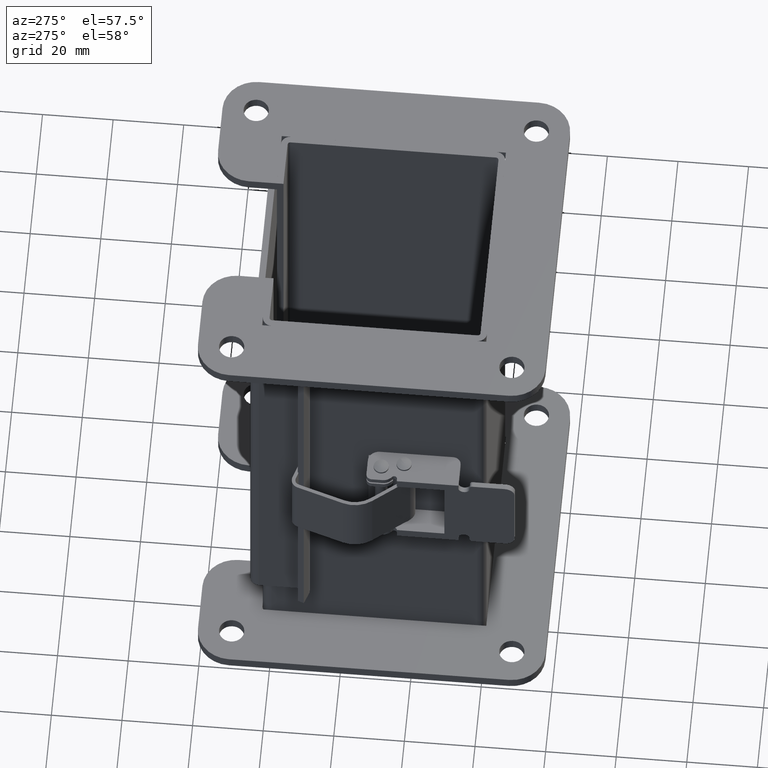
[diagram: clean part render]
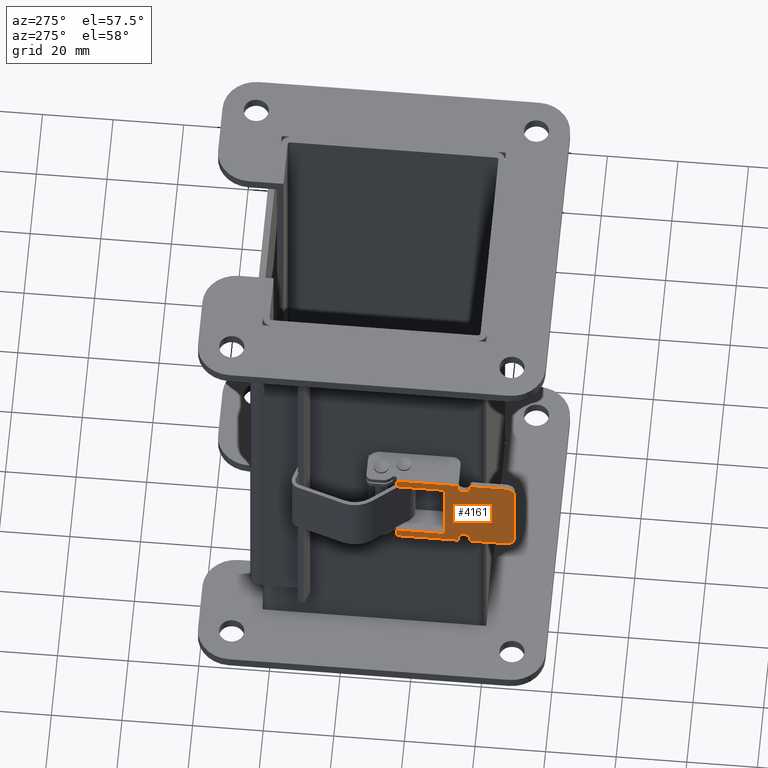
[diagram: same view with one face highlighted and labeled with its STEP entity id]
A machine part, auxiliary view. The second image highlights one B-rep face of the part: STEP entity #4161.
In plain terms, the highlighted planar face has unit normal (1, 0, -0).
Its self-contained STEP definition (entity closure, byte-faithful):
#272=PLANE('',#4516);
#472=FACE_OUTER_BOUND('',#746,.T.);
#746=EDGE_LOOP('',(#3389,#3390,#3391,#3392,#3393,#3394,#3395,#3396,#3397,
#3398,#3399,#3400,#3401,#3402,#3403,#3404,#3405,#3406,#3407,#3408));
#947=CIRCLE('',#4517,0.0625);
#948=CIRCLE('',#4518,0.031250000000001);
#949=CIRCLE('',#4519,0.109375);
#950=CIRCLE('',#4520,0.109375);
#951=CIRCLE('',#4521,0.03125);
#952=CIRCLE('',#4522,0.0625);
#1256=LINE('',#6625,#1646);
#1268=LINE('',#6656,#1658);
#1269=LINE('',#6658,#1659);
#1270=LINE('',#6660,#1660);
#1271=LINE('',#6662,#1661);
#1272=LINE('',#6664,#1662);
#1273=LINE('',#6666,#1663);
#1274=LINE('',#6668,#1664);
#1275=LINE('',#6672,#1665);
#1276=LINE('',#6676,#1666);
#1277=LINE('',#6680,#1667);
#1278=LINE('',#6684,#1668);
#1279=LINE('',#6688,#1669);
#1280=LINE('',#6691,#1670);
#1646=VECTOR('',#5429,0.687499999999998);
#1658=VECTOR('',#5457,0.114750000000001);
#1659=VECTOR('',#5458,0.531249999999998);
#1660=VECTOR('',#5459,0.895500000000013);
#1661=VECTOR('',#5460,0.531249999999998);
#1662=VECTOR('',#5461,0.114750000000004);
#1663=VECTOR('',#5462,0.687499999999998);
#1664=VECTOR('',#5463,0.060000000000002);
#1665=VECTOR('',#5466,0.028750000000002);
#1666=VECTOR('',#5469,0.359375000000002);
#1667=VECTOR('',#5472,0.90625);
#1668=VECTOR('',#5475,0.359375);
#1669=VECTOR('',#5478,0.0287499999999951);
#1670=VECTOR('',#5481,0.0599999999999951);
#2011=VERTEX_POINT('',#6622);
#2012=VERTEX_POINT('',#6624);
#2023=VERTEX_POINT('',#6655);
#2024=VERTEX_POINT('',#6657);
#2025=VERTEX_POINT('',#6659);
#2026=VERTEX_POINT('',#6661);
#2027=VERTEX_POINT('',#6663);
#2028=VERTEX_POINT('',#6665);
#2029=VERTEX_POINT('',#6667);
#2030=VERTEX_POINT('',#6669);
#2031=VERTEX_POINT('',#6671);
#2032=VERTEX_POINT('',#6673);
#2033=VERTEX_POINT('',#6675);
#2034=VERTEX_POINT('',#6677);
#2035=VERTEX_POINT('',#6679);
#2036=VERTEX_POINT('',#6681);
#2037=VERTEX_POINT('',#6683);
#2038=VERTEX_POINT('',#6685);
#2039=VERTEX_POINT('',#6687);
#2040=VERTEX_POINT('',#6689);
#2496=EDGE_CURVE('',#2011,#2012,#1256,.T.);
#2512=EDGE_CURVE('',#2011,#2023,#1268,.T.);
#2513=EDGE_CURVE('',#2024,#2023,#1269,.T.);
#2514=EDGE_CURVE('',#2025,#2024,#1270,.T.);
#2515=EDGE_CURVE('',#2026,#2025,#1271,.T.);
#2516=EDGE_CURVE('',#2027,#2026,#1272,.T.);
#2517=EDGE_CURVE('',#2028,#2027,#1273,.T.);
#2518=EDGE_CURVE('',#2029,#2028,#1274,.T.);
#2519=EDGE_CURVE('',#2030,#2029,#947,.T.);
#2520=EDGE_CURVE('',#2031,#2030,#1275,.T.);
#2521=EDGE_CURVE('',#2032,#2031,#948,.T.);
#2522=EDGE_CURVE('',#2033,#2032,#1276,.T.);
#2523=EDGE_CURVE('',#2034,#2033,#949,.T.);
#2524=EDGE_CURVE('',#2035,#2034,#1277,.T.);
#2525=EDGE_CURVE('',#2036,#2035,#950,.T.);
#2526=EDGE_CURVE('',#2037,#2036,#1278,.T.);
#2527=EDGE_CURVE('',#2038,#2037,#951,.T.);
#2528=EDGE_CURVE('',#2039,#2038,#1279,.T.);
#2529=EDGE_CURVE('',#2040,#2039,#952,.T.);
#2530=EDGE_CURVE('',#2012,#2040,#1280,.T.);
#3389=ORIENTED_EDGE('',*,*,#2512,.T.);
#3390=ORIENTED_EDGE('',*,*,#2513,.F.);
#3391=ORIENTED_EDGE('',*,*,#2514,.F.);
#3392=ORIENTED_EDGE('',*,*,#2515,.F.);
#3393=ORIENTED_EDGE('',*,*,#2516,.F.);
#3394=ORIENTED_EDGE('',*,*,#2517,.F.);
#3395=ORIENTED_EDGE('',*,*,#2518,.F.);
#3396=ORIENTED_EDGE('',*,*,#2519,.F.);
#3397=ORIENTED_EDGE('',*,*,#2520,.F.);
#3398=ORIENTED_EDGE('',*,*,#2521,.F.);
#3399=ORIENTED_EDGE('',*,*,#2522,.F.);
#3400=ORIENTED_EDGE('',*,*,#2523,.F.);
#3401=ORIENTED_EDGE('',*,*,#2524,.F.);
#3402=ORIENTED_EDGE('',*,*,#2525,.F.);
#3403=ORIENTED_EDGE('',*,*,#2526,.F.);
#3404=ORIENTED_EDGE('',*,*,#2527,.F.);
#3405=ORIENTED_EDGE('',*,*,#2528,.F.);
#3406=ORIENTED_EDGE('',*,*,#2529,.F.);
#3407=ORIENTED_EDGE('',*,*,#2530,.F.);
#3408=ORIENTED_EDGE('',*,*,#2496,.F.);
#4161=ADVANCED_FACE('',(#472),#272,.F.);
#4516=AXIS2_PLACEMENT_3D('',#6654,#5455,#5456);
#4517=AXIS2_PLACEMENT_3D('',#6670,#5464,#5465);
#4518=AXIS2_PLACEMENT_3D('',#6674,#5467,#5468);
#4519=AXIS2_PLACEMENT_3D('',#6678,#5470,#5471);
#4520=AXIS2_PLACEMENT_3D('',#6682,#5473,#5474);
#4521=AXIS2_PLACEMENT_3D('',#6686,#5476,#5477);
#4522=AXIS2_PLACEMENT_3D('',#6690,#5479,#5480);
#5429=DIRECTION('',(0.,-1.,0.));
#5455=DIRECTION('center_axis',(0.,0.,-1.));
#5456=DIRECTION('ref_axis',(-1.,0.,0.));
#5457=DIRECTION('',(-1.,0.,0.));
#5458=DIRECTION('',(0.,1.,0.));
#5459=DIRECTION('',(1.,0.,0.));
#5460=DIRECTION('',(0.,-1.,0.));
#5461=DIRECTION('',(1.,0.,0.));
#5462=DIRECTION('',(0.,1.,0.));
#5463=DIRECTION('',(-1.,0.,0.));
#5464=DIRECTION('center_axis',(0.,0.,1.));
#5465=DIRECTION('ref_axis',(1.,0.,0.));
#5466=DIRECTION('',(1.,0.,0.));
#5467=DIRECTION('center_axis',(0.,0.,-1.));
#5468=DIRECTION('ref_axis',(-0.707106781186568,0.707106781186527,0.));
#5469=DIRECTION('',(0.,1.,0.));
#5470=DIRECTION('center_axis',(0.,0.,-1.));
#5471=DIRECTION('ref_axis',(-0.707106781186548,-0.707106781186548,0.));
#5472=DIRECTION('',(-1.,0.,0.));
#5473=DIRECTION('center_axis',(0.,0.,-1.));
#5474=DIRECTION('ref_axis',(0.707106781186545,-0.70710678118655,0.));
#5475=DIRECTION('',(0.,-1.,0.));
#5476=DIRECTION('center_axis',(0.,0.,-1.));
#5477=DIRECTION('ref_axis',(0.707106781186548,0.707106781186548,0.));
#5478=DIRECTION('',(1.,0.,0.));
#5479=DIRECTION('center_axis',(0.,0.,1.));
#5480=DIRECTION('ref_axis',(-1.,0.,0.));
#5481=DIRECTION('',(-1.,0.,0.));
#6622=CARTESIAN_POINT('',(0.562500000000014,0.48437499999998,0.184999999999999));
#6624=CARTESIAN_POINT('',(0.562500000000014,-0.203125000000018,0.185000000000001));
#6625=CARTESIAN_POINT('',(0.562500000000014,0.48437499999998,0.184999999999999));
#6654=CARTESIAN_POINT('Origin',(-0.447749999999992,-0.046875000000018,0.184999999999999));
#6655=CARTESIAN_POINT('',(0.447750000000013,0.48437499999998,0.185000000000001));
#6656=CARTESIAN_POINT('',(0.562500000000014,0.48437499999998,0.184999999999999));
#6657=CARTESIAN_POINT('',(0.447750000000021,-0.046875000000018,0.185000000000001));
#6658=CARTESIAN_POINT('',(0.447750000000021,-0.046875000000018,0.185000000000001));
#6659=CARTESIAN_POINT('',(-0.447749999999992,-0.046875000000018,0.184999999999999));
#6660=CARTESIAN_POINT('',(-0.447749999999992,-0.046875000000018,0.184999999999999));
#6661=CARTESIAN_POINT('',(-0.447749999999985,0.48437499999998,0.184999999999999));
#6662=CARTESIAN_POINT('',(-0.447749999999985,0.48437499999998,0.184999999999999));
#6663=CARTESIAN_POINT('',(-0.562499999999989,0.48437499999998,0.184999999999999));
#6664=CARTESIAN_POINT('',(-0.562499999999989,0.48437499999998,0.184999999999999));
#6665=CARTESIAN_POINT('',(-0.562499999999993,-0.203125000000018,0.184999999999999));
#6666=CARTESIAN_POINT('',(-0.562499999999993,-0.203125000000018,0.184999999999999));
#6667=CARTESIAN_POINT('',(-0.502499999999991,-0.203125000000018,0.184999999999999));
#6668=CARTESIAN_POINT('',(-0.502499999999991,-0.203125000000018,0.184999999999999));
#6669=CARTESIAN_POINT('',(-0.502499999999991,-0.328125000000018,0.184999999999999));
#6670=CARTESIAN_POINT('Origin',(-0.502499999999991,-0.265625000000018,0.184999999999999));
#6671=CARTESIAN_POINT('',(-0.531249999999993,-0.328125000000016,0.184999999999999));
#6672=CARTESIAN_POINT('',(-0.531249999999993,-0.328125000000016,0.184999999999999));
#6673=CARTESIAN_POINT('',(-0.562499999999993,-0.359375000000018,0.184999999999999));
#6674=CARTESIAN_POINT('Origin',(-0.531249999999993,-0.359375000000016,0.184999999999999));
#6675=CARTESIAN_POINT('',(-0.562499999999986,-0.71875000000002,0.184999999999999));
#6676=CARTESIAN_POINT('',(-0.562499999999986,-0.71875000000002,0.184999999999999));
#6677=CARTESIAN_POINT('',(-0.453124999999986,-0.82812500000002,0.184999999999999));
#6678=CARTESIAN_POINT('Origin',(-0.453124999999986,-0.71875000000002,0.184999999999999));
#6679=CARTESIAN_POINT('',(0.453125000000014,-0.828125000000018,0.185000000000001));
#6680=CARTESIAN_POINT('',(0.453125000000014,-0.828125000000018,0.185000000000001));
#6681=CARTESIAN_POINT('',(0.562500000000014,-0.718750000000018,0.185000000000001));
#6682=CARTESIAN_POINT('Origin',(0.453125000000014,-0.718750000000018,0.185000000000001));
#6683=CARTESIAN_POINT('',(0.562500000000014,-0.359375000000018,0.185000000000001));
#6684=CARTESIAN_POINT('',(0.562500000000014,-0.359375000000018,0.185000000000001));
#6685=CARTESIAN_POINT('',(0.531250000000014,-0.328125000000018,0.185000000000001));
#6686=CARTESIAN_POINT('Origin',(0.531250000000014,-0.359375000000018,0.185000000000001));
#6687=CARTESIAN_POINT('',(0.502500000000019,-0.328125000000018,0.185000000000001));
#6688=CARTESIAN_POINT('',(0.502500000000019,-0.328125000000018,0.185000000000001));
#6689=CARTESIAN_POINT('',(0.502500000000019,-0.203125000000018,0.185000000000001));
#6690=CARTESIAN_POINT('Origin',(0.502500000000019,-0.265625000000018,0.185000000000001));
#6691=CARTESIAN_POINT('',(0.562500000000014,-0.203125000000018,0.185000000000001));